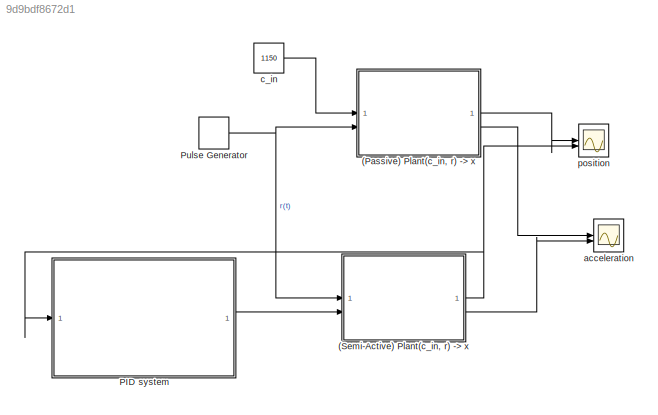
MODEL slx_9d9bdf8672d1
KIND model
CONFIG AbsTol = auto
CONFIG EnableMultiTasking = off
CONFIG FixedStep = auto
CONFIG MaxStep = auto
CONFIG MinStep = auto
CONFIG RelTol = 1e-3
CONFIG SampleTimeConstraint = Unconstrained
CONFIG SolverName = VariableStepAuto
CONFIG StartTime = 0.0
CONFIG StopTime = 10.0
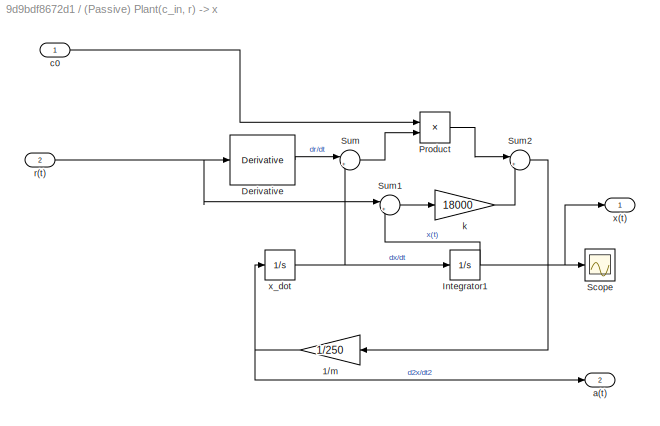
BLOCK [SubSystem] (Passive) Plant(c_in, r) -> x
BLOCK [Gain] (Passive) Plant(c_in, r) -> x/1//m
  Gain = 1/250
  NameLocation = top
BLOCK [Derivative] (Passive) Plant(c_in, r) -> x/Derivative
BLOCK [Integrator] (Passive) Plant(c_in, r) -> x/Integrator1
BLOCK [Product] (Passive) Plant(c_in, r) -> x/Product
BLOCK [Scope] (Passive) Plant(c_in, r) -> x/Scope
  ActiveDisplayYMaximum = 0.021882842453229665
  ActiveDisplayYMinimum = -0.022050663065569576
  Floating = off
  GraphicalSettings = {"Style":{"BackgroundColor":[0.12941176470588237,0.12941176470588237,0.12941176470588237],"AxesColor":[0.07058823529411765,0.07058823529411765,0.07058823529411765],"LabelsColor":[0.8509803921568627,0.8509803921568627,0.8509803921568627],"PreserveColors":false,"Visible":[true],"LineStyle":["-"],"LineWidth":[1.5],"BarWidth":[0.9],"LineColor":["auto"],"LineFaceAlpha":[1],"LineEdgeAlpha":[1],"Marker":...<+2004ch>
  MultipleDisplayCache = [{"MaxYLimMag":0.022050663065569576,"MaxYLimReal":0.021882842453229665,"MinYLimMag":0,"MinYLimReal":-0.022050663065569576,"PlotAsMagnitudePhase":false,"ShowGrid":true,"ShowLegend":false,"Title":"%<SignalLabel>","YLabel":""}]
  NumInputPorts = 1
  ScopeFrameLocation = window
  WasSavedAsWebScope = on
  WindowPosition = [167.000000,270.000000,881.000000,569.000000,]
BLOCK [Sum] (Passive) Plant(c_in, r) -> x/Sum
  Inputs = |+-
BLOCK [Sum] (Passive) Plant(c_in, r) -> x/Sum1
  Inputs = |+-
BLOCK [Sum] (Passive) Plant(c_in, r) -> x/Sum2
  Inputs = |++
BLOCK [Outport] (Passive) Plant(c_in, r) -> x/a(t)
  Port = 2
BLOCK [Inport] (Passive) Plant(c_in, r) -> x/c0
BLOCK [Gain] (Passive) Plant(c_in, r) -> x/k
  Gain = 18000
BLOCK [Inport] (Passive) Plant(c_in, r) -> x/r(t)
  Port = 2
BLOCK [Outport] (Passive) Plant(c_in, r) -> x/x(t)
BLOCK [Integrator] (Passive) Plant(c_in, r) -> x/x_dot
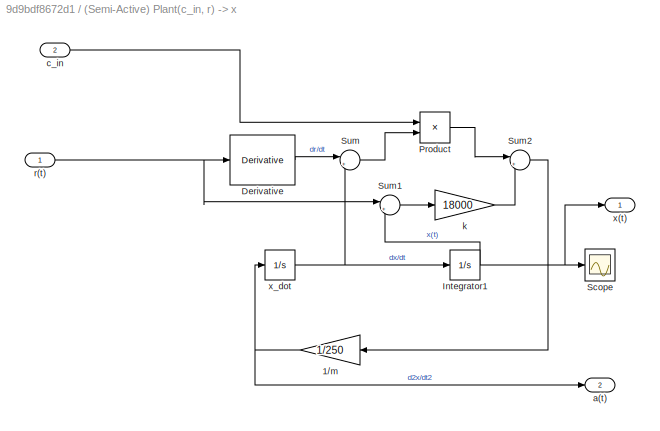
BLOCK [SubSystem] (Semi-Active) Plant(c_in, r) -> x
BLOCK [Gain] (Semi-Active) Plant(c_in, r) -> x/1//m
  Gain = 1/250
  NameLocation = top
BLOCK [Derivative] (Semi-Active) Plant(c_in, r) -> x/Derivative
BLOCK [Integrator] (Semi-Active) Plant(c_in, r) -> x/Integrator1
BLOCK [Product] (Semi-Active) Plant(c_in, r) -> x/Product
BLOCK [Scope] (Semi-Active) Plant(c_in, r) -> x/Scope
  ActiveDisplayYMaximum = 0.021882842453229665
  ActiveDisplayYMinimum = -0.022050663065569576
  Floating = off
  GraphicalSettings = {"Style":{"BackgroundColor":[0.12941176470588237,0.12941176470588237,0.12941176470588237],"AxesColor":[0.07058823529411765,0.07058823529411765,0.07058823529411765],"LabelsColor":[0.8509803921568627,0.8509803921568627,0.8509803921568627],"PreserveColors":false,"Visible":[true],"LineStyle":["-"],"LineWidth":[1.5],"BarWidth":[0.9],"LineColor":["auto"],"LineFaceAlpha":[1],"LineEdgeAlpha":[1],"Marker":...<+2004ch>
  MultipleDisplayCache = [{"MaxYLimMag":0.022050663065569576,"MaxYLimReal":0.021882842453229665,"MinYLimMag":0,"MinYLimReal":-0.022050663065569576,"PlotAsMagnitudePhase":false,"ShowGrid":true,"ShowLegend":false,"Title":"%<SignalLabel>","YLabel":""}]
  NumInputPorts = 1
  ScopeFrameLocation = window
  WasSavedAsWebScope = on
  WindowPosition = [167.000000,270.000000,881.000000,569.000000,]
BLOCK [Sum] (Semi-Active) Plant(c_in, r) -> x/Sum
  Inputs = |+-
BLOCK [Sum] (Semi-Active) Plant(c_in, r) -> x/Sum1
  Inputs = |+-
BLOCK [Sum] (Semi-Active) Plant(c_in, r) -> x/Sum2
  Inputs = |++
BLOCK [Outport] (Semi-Active) Plant(c_in, r) -> x/a(t)
  Port = 2
BLOCK [Inport] (Semi-Active) Plant(c_in, r) -> x/c_in
  Port = 2
BLOCK [Gain] (Semi-Active) Plant(c_in, r) -> x/k
  Gain = 18000
BLOCK [Inport] (Semi-Active) Plant(c_in, r) -> x/r(t)
BLOCK [Outport] (Semi-Active) Plant(c_in, r) -> x/x(t)
BLOCK [Integrator] (Semi-Active) Plant(c_in, r) -> x/x_dot
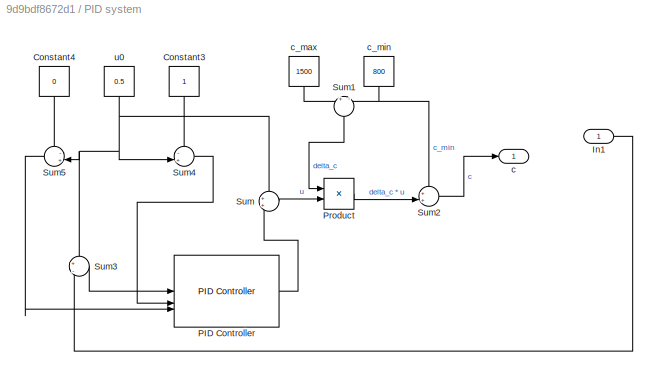
BLOCK [SubSystem] PID system
BLOCK [Constant] PID system/Constant3
  NameLocation = left
BLOCK [Constant] PID system/Constant4
  NameLocation = left
  Value = 0
BLOCK [Inport] PID system/In1
BLOCK [Reference] PID system/PID Controller  REF=slpidlib/PID Controller
  LibrarySourceBlock = simulink/Continuous/PID Controller
  SourceBlock = slpidlib/PID Controller
  SourceType = PID 1dof
BLOCK [Product] PID system/Product
BLOCK [Sum] PID system/Sum
BLOCK [Sum] PID system/Sum1
  Inputs = +|-
  NameLocation = left
BLOCK [Sum] PID system/Sum2
  Inputs = ++|
BLOCK [Sum] PID system/Sum3
  Inputs = +|-
BLOCK [Sum] PID system/Sum4
  Inputs = -+|
BLOCK [Sum] PID system/Sum5
  Inputs = -+|
  NameLocation = top
BLOCK [Outport] PID system/c
BLOCK [Constant] PID system/c_max
  NameLocation = top
  Value = 1500
BLOCK [Constant] PID system/c_min
  NameLocation = top
  Value = 800
BLOCK [Constant] PID system/u0
  NameLocation = left
  Value = 0.5
BLOCK [DiscretePulseGenerator] Pulse Generator
  Amplitude = 0.5
  Period = 10
  PulseType = Time based
BLOCK [Scope] acceleration
  ActiveDisplayYMaximum = 209.194454649382
  ActiveDisplayYMinimum = -166.22989507394192
  DataLoggingVariableName = ScopeData1
  Floating = off
  GraphicalSettings = {"AxesScalingProperties":{"AlignXAxis":"Center","AlignYAxis":"Center","AutoScaleXAxisLimits":false,"AxesScaling":"Manual","AxesScalingNumUpdates":10,"ExpandOnly":true,"ScaleAxesLimitsAtStop":false,"XAxisDataRange":100,"YAxisDataRange":80},"DisplayProperties":{"ColorOrder":["auto","auto","auto","auto","auto","auto","auto","auto","auto","auto","auto","auto","auto","auto","auto","auto","auto","auto",...<+2257ch>
  MultipleDisplayCache = [{"MaxYLimMag":205.53534792693245,"MaxYLimReal":209.194454649382,"MinYLimMag":0,"MinYLimReal":-166.22989507394192,"PlotAsMagnitudePhase":false,"ShowGrid":true,"ShowLegend":false,"Title":"%<SignalLabel>","YLabel":""}]
  NumInputPorts = 2
  ScopeFrameLocation = window
  WasSavedAsWebScope = on
  WindowPosition = [4.000000,407.000000,654.000000,498.000000,]
BLOCK [Constant] c_in
  Value = 1150
BLOCK [Scope] position
  ActiveDisplayYMaximum = 0.36892350204718177
  ActiveDisplayYMinimum = -0.2280193743367859
  Floating = off
  GraphicalSettings = {"AxesScalingProperties":{"AlignXAxis":"Center","AlignYAxis":"Center","AutoScaleXAxisLimits":false,"AxesScaling":"Manual","AxesScalingNumUpdates":10,"ExpandOnly":true,"ScaleAxesLimitsAtStop":false,"XAxisDataRange":100,"YAxisDataRange":80},"DisplayProperties":{"ColorOrder":["auto","auto","auto","auto","auto","auto","auto","auto","auto","auto","auto","auto","auto","auto","auto","auto","auto","auto",...<+2245ch>
  MultipleDisplayCache = [{"MaxYLimMag":0.36892350204718177,"MaxYLimReal":0.36892350204718177,"MinYLimMag":0,"MinYLimReal":-0.2280193743367859,"PlotAsMagnitudePhase":false,"ShowGrid":true,"ShowLegend":false,"Title":"%<SignalLabel>","YLabel":""}]
  NumInputPorts = 2
  ScopeFrameLocation = window
  WasSavedAsWebScope = on
  WindowPosition = [882.000000,395.000000,630.000000,521.000000,]
NET (Passive) Plant(c_in, r) -> x/1//m:1 -> (Passive) Plant(c_in, r) -> x/a(t):1, (Passive) Plant(c_in, r) -> x/x_dot:1
LINE (Passive) Plant(c_in, r) -> x/Derivative:1 -> (Passive) Plant(c_in, r) -> x/Sum:1
NET (Passive) Plant(c_in, r) -> x/Integrator1:1 -> (Passive) Plant(c_in, r) -> x/Scope:1, (Passive) Plant(c_in, r) -> x/Sum1:2, (Passive) Plant(c_in, r) -> x/x(t):1
LINE (Passive) Plant(c_in, r) -> x/Product:1 -> (Passive) Plant(c_in, r) -> x/Sum2:1
LINE (Passive) Plant(c_in, r) -> x/Sum1:1 -> (Passive) Plant(c_in, r) -> x/k:1
LINE (Passive) Plant(c_in, r) -> x/Sum2:1 -> (Passive) Plant(c_in, r) -> x/1//m:1
LINE (Passive) Plant(c_in, r) -> x/Sum:1 -> (Passive) Plant(c_in, r) -> x/Product:2
LINE (Passive) Plant(c_in, r) -> x/c0:1 -> (Passive) Plant(c_in, r) -> x/Product:1
LINE (Passive) Plant(c_in, r) -> x/k:1 -> (Passive) Plant(c_in, r) -> x/Sum2:2
NET (Passive) Plant(c_in, r) -> x/r(t):1 -> (Passive) Plant(c_in, r) -> x/Derivative:1, (Passive) Plant(c_in, r) -> x/Sum1:1
NET (Passive) Plant(c_in, r) -> x/x_dot:1 -> (Passive) Plant(c_in, r) -> x/Integrator1:1, (Passive) Plant(c_in, r) -> x/Sum:2
LINE (Passive) Plant(c_in, r) -> x:1 -> position:1
LINE (Passive) Plant(c_in, r) -> x:2 -> acceleration:1
NET (Semi-Active) Plant(c_in, r) -> x/1//m:1 -> (Semi-Active) Plant(c_in, r) -> x/a(t):1, (Semi-Active) Plant(c_in, r) -> x/x_dot:1
LINE (Semi-Active) Plant(c_in, r) -> x/Derivative:1 -> (Semi-Active) Plant(c_in, r) -> x/Sum:1
NET (Semi-Active) Plant(c_in, r) -> x/Integrator1:1 -> (Semi-Active) Plant(c_in, r) -> x/Scope:1, (Semi-Active) Plant(c_in, r) -> x/Sum1:2, (Semi-Active) Plant(c_in, r) -> x/x(t):1
LINE (Semi-Active) Plant(c_in, r) -> x/Product:1 -> (Semi-Active) Plant(c_in, r) -> x/Sum2:1
LINE (Semi-Active) Plant(c_in, r) -> x/Sum1:1 -> (Semi-Active) Plant(c_in, r) -> x/k:1
LINE (Semi-Active) Plant(c_in, r) -> x/Sum2:1 -> (Semi-Active) Plant(c_in, r) -> x/1//m:1
LINE (Semi-Active) Plant(c_in, r) -> x/Sum:1 -> (Semi-Active) Plant(c_in, r) -> x/Product:2
LINE (Semi-Active) Plant(c_in, r) -> x/c_in:1 -> (Semi-Active) Plant(c_in, r) -> x/Product:1
LINE (Semi-Active) Plant(c_in, r) -> x/k:1 -> (Semi-Active) Plant(c_in, r) -> x/Sum2:2
NET (Semi-Active) Plant(c_in, r) -> x/r(t):1 -> (Semi-Active) Plant(c_in, r) -> x/Derivative:1, (Semi-Active) Plant(c_in, r) -> x/Sum1:1
NET (Semi-Active) Plant(c_in, r) -> x/x_dot:1 -> (Semi-Active) Plant(c_in, r) -> x/Integrator1:1, (Semi-Active) Plant(c_in, r) -> x/Sum:2
NET (Semi-Active) Plant(c_in, r) -> x:1 -> PID system:1, position:2
LINE (Semi-Active) Plant(c_in, r) -> x:2 -> acceleration:2
LINE PID system/Constant3:1 -> PID system/Sum4:1
LINE PID system/Constant4:1 -> PID system/Sum5:1
LINE PID system/In1:1 -> PID system/Sum3:2
LINE PID system/PID Controller:1 -> PID system/Sum:2
LINE PID system/Product:1 -> PID system/Sum2:2
LINE PID system/Sum1:1 -> PID system/Product:1
LINE PID system/Sum2:1 -> PID system/c:1
LINE PID system/Sum3:1 -> PID system/PID Controller:1
LINE PID system/Sum4:1 -> PID system/PID Controller:2
LINE PID system/Sum5:1 -> PID system/PID Controller:3
LINE PID system/Sum:1 -> PID system/Product:2
LINE PID system/c_max:1 -> PID system/Sum1:1
NET PID system/c_min:1 -> PID system/Sum1:2, PID system/Sum2:1
NET PID system/u0:1 -> PID system/Sum3:1, PID system/Sum4:2, PID system/Sum5:2, PID system/Sum:1
LINE PID system:1 -> (Semi-Active) Plant(c_in, r) -> x:2
NET Pulse Generator:1 -> (Passive) Plant(c_in, r) -> x:2, (Semi-Active) Plant(c_in, r) -> x:1
LINE c_in:1 -> (Passive) Plant(c_in, r) -> x:1
note: NET lines group one-source signal fan-out (src -> all destinations, sorted); 1:1 wires keep LINE
